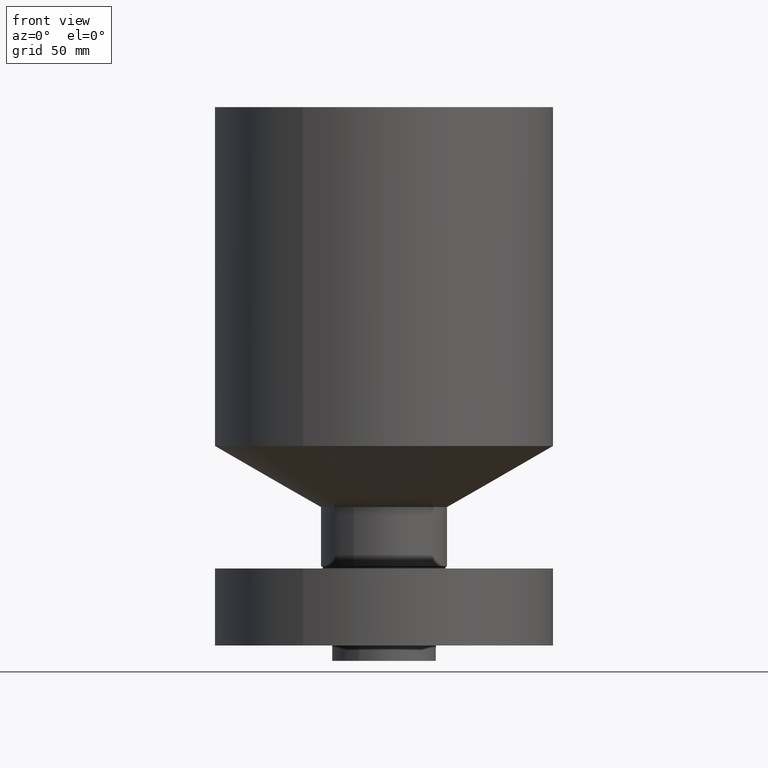
[diagram: clean part render]
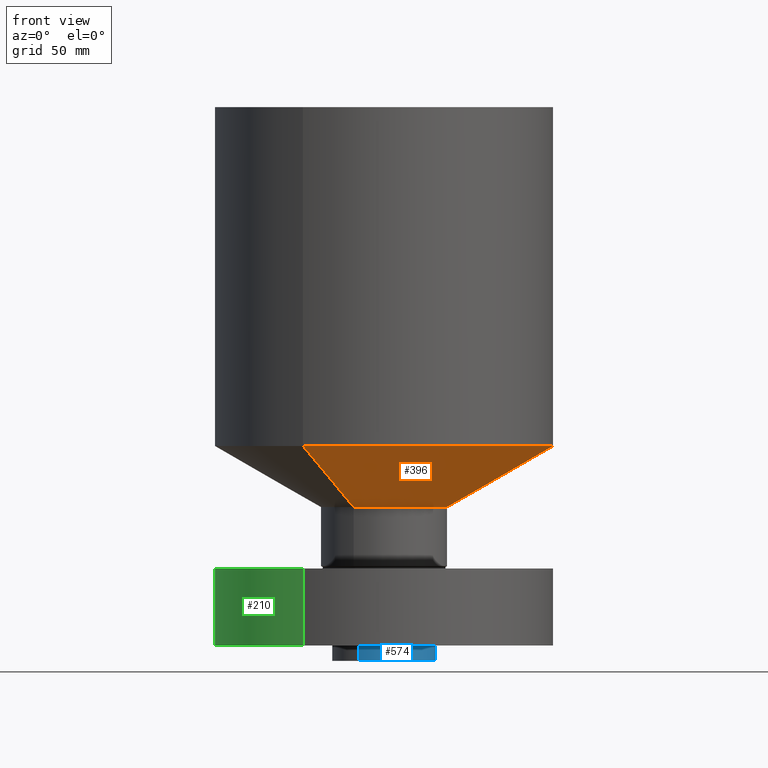
[diagram: same view with three faces highlighted in distinct colors, each labeled with its STEP entity id]
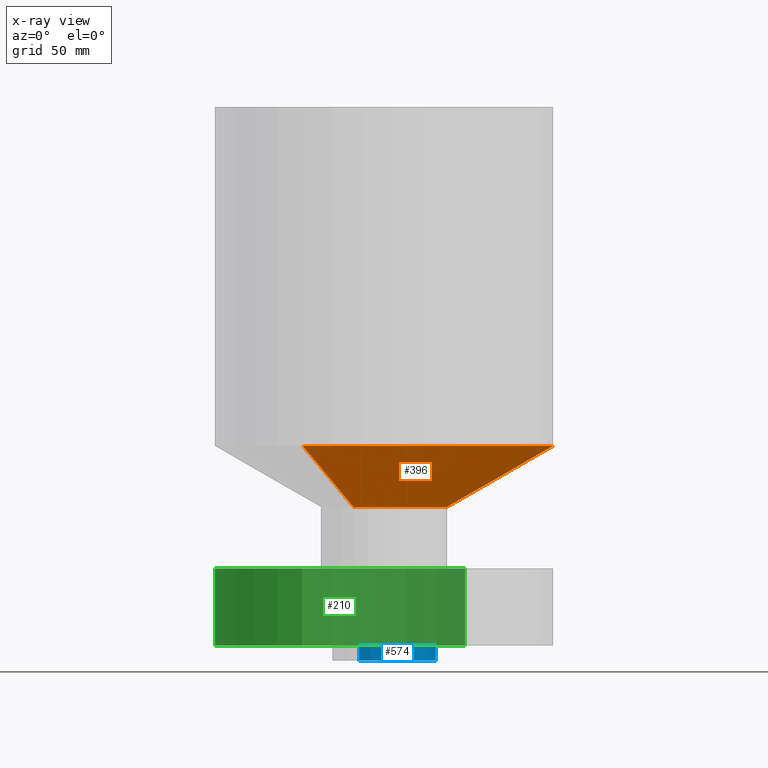
[diagram: x-ray of the same camera — body ghosted, the three highlighted faces saturated]
A machine part, front view with three faces highlighted in distinct colors.
The next image is the same camera in x-ray (body ghosted, the three faces saturated) — at least one of them is partly hidden behind the body in this view.
Their STEP definitions:

[orange] entity #396 — the highlighted conical surface has half-angle 60 deg.
#337=AXIS2_PLACEMENT_3D('Circle Axis2P3D',#335,#336,$) ;
#369=AXIS2_PLACEMENT_3D('Cone Axis2P3D',#366,#367,#368) ;
#380=AXIS2_PLACEMENT_3D('Circle Axis2P3D',#378,#379,$) ;
#332=CARTESIAN_POINT('Vertex',(0.493808304764,0.903910038751,2.25000000001)) ;
#335=CARTESIAN_POINT('Axis2P3D Location',(0.,0.,2.25000000001)) ;
#339=CARTESIAN_POINT('Vertex',(-0.493808304764,-0.903910038751,2.25000000001)) ;
#366=CARTESIAN_POINT('Axis2P3D Location',(0.,0.,2.25000000001)) ;
#371=CARTESIAN_POINT('Line Origine',(0.906114267966,1.65863104198,2.74652123151)) ;
#375=CARTESIAN_POINT('Vertex',(1.31842023117,2.41335204521,3.24304246302)) ;
#378=CARTESIAN_POINT('Axis2P3D Location',(0.,0.,3.24304246302)) ;
#382=CARTESIAN_POINT('Vertex',(-1.31842023117,-2.41335204521,3.24304246302)) ;
#385=CARTESIAN_POINT('Line Origine',(-0.906114267966,-1.65863104198,2.74652123151)) ;
#336=DIRECTION('Axis2P3D Direction',(0.,0.,-0.0393700787402)) ;
#367=DIRECTION('Axis2P3D Direction',(-0.,-0.,0.0393700787402)) ;
#368=DIRECTION('Axis2P3D XDirection',(0.0188750212049,0.0345504945626,0.)) ;
#372=DIRECTION('Vector Direction',(0.0163462478604,0.0299216060045,0.0196850393701)) ;
#379=DIRECTION('Axis2P3D Direction',(-0.,0.,0.0393700787402)) ;
#386=DIRECTION('Vector Direction',(-0.0163462478604,-0.0299216060045,0.0196850393701)) ;
#373=VECTOR('Line Direction',#372,0.0393700787402) ;
#387=VECTOR('Line Direction',#386,0.0393700787402) ;
#391=ORIENTED_EDGE('',*,*,#341,.F.) ;
#392=ORIENTED_EDGE('',*,*,#377,.T.) ;
#393=ORIENTED_EDGE('',*,*,#384,.T.) ;
#394=ORIENTED_EDGE('',*,*,#389,.F.) ;
#396=ADVANCED_FACE('PartBody',(#395),#370,.T.) ;
#338=CIRCLE('generated circle',#337,1.03) ;
#381=CIRCLE('generated circle',#380,2.75000000001) ;
#370=CONICAL_SURFACE('Cone',#369,1.03,1.0471975512) ;
#341=EDGE_CURVE('',#333,#340,#338,.T.) ;
#377=EDGE_CURVE('',#333,#376,#374,.T.) ;
#384=EDGE_CURVE('',#376,#383,#381,.F.) ;
#389=EDGE_CURVE('',#340,#383,#388,.T.) ;
#390=EDGE_LOOP('',(#391,#392,#393,#394)) ;
#395=FACE_OUTER_BOUND('',#390,.T.) ;
#374=LINE('Line',#371,#373) ;
#388=LINE('Line',#385,#387) ;
#333=VERTEX_POINT('',#332) ;
#340=VERTEX_POINT('',#339) ;
#376=VERTEX_POINT('',#375) ;
#383=VERTEX_POINT('',#382) ;

[blue] entity #574 — the highlighted cylindrical surface (partial cylindrical patch) has radius 21.463 mm, axis along (0, 0, -1).
#109=AXIS2_PLACEMENT_3D('Circle Axis2P3D',#107,#108,$) ;
#534=AXIS2_PLACEMENT_3D('Circle Axis2P3D',#532,#533,$) ;
#549=AXIS2_PLACEMENT_3D('Cylinder Axis2P3D',#546,#547,#548) ;
#107=CARTESIAN_POINT('Axis2P3D Location',(0.,0.,0.)) ;
#111=CARTESIAN_POINT('Vertex',(0.405114580122,0.7415572648,0.)) ;
#113=CARTESIAN_POINT('Vertex',(-0.405114580122,-0.7415572648,0.)) ;
#527=CARTESIAN_POINT('Vertex',(-0.405114580122,-0.7415572648,-0.250000000001)) ;
#529=CARTESIAN_POINT('Vertex',(0.405114580122,0.7415572648,-0.250000000001)) ;
#532=CARTESIAN_POINT('Axis2P3D Location',(0.,0.,-0.250000000001)) ;
#546=CARTESIAN_POINT('Axis2P3D Location',(0.,0.,4.25000000002)) ;
#551=CARTESIAN_POINT('Line Origine',(-0.405114580122,-0.7415572648,-0.125000000001)) ;
#556=CARTESIAN_POINT('Line Origine',(0.405114580122,0.7415572648,-0.125000000001)) ;
#108=DIRECTION('Axis2P3D Direction',(0.,0.,-0.0393700787402)) ;
#533=DIRECTION('Axis2P3D Direction',(0.,0.,-0.0393700787402)) ;
#547=DIRECTION('Axis2P3D Direction',(0.,0.,-0.0393700787402)) ;
#548=DIRECTION('Axis2P3D XDirection',(0.0188750212049,0.0345504945626,0.)) ;
#552=DIRECTION('Vector Direction',(0.,0.,-0.0393700787402)) ;
#557=DIRECTION('Vector Direction',(0.,0.,-0.0393700787402)) ;
#553=VECTOR('Line Direction',#552,0.0393700787402) ;
#558=VECTOR('Line Direction',#557,0.0393700787402) ;
#569=ORIENTED_EDGE('',*,*,#536,.F.) ;
#570=ORIENTED_EDGE('',*,*,#560,.T.) ;
#571=ORIENTED_EDGE('',*,*,#115,.T.) ;
#572=ORIENTED_EDGE('',*,*,#555,.F.) ;
#574=ADVANCED_FACE('PartBody',(#573),#550,.T.) ;
#110=CIRCLE('generated circle',#109,0.845000000003) ;
#535=CIRCLE('generated circle',#534,0.845000000003) ;
#550=CYLINDRICAL_SURFACE('generated cylinder',#549,0.845000000003) ;
#115=EDGE_CURVE('',#112,#114,#110,.T.) ;
#536=EDGE_CURVE('',#530,#528,#535,.T.) ;
#555=EDGE_CURVE('',#528,#114,#554,.F.) ;
#560=EDGE_CURVE('',#530,#112,#559,.F.) ;
#568=EDGE_LOOP('',(#569,#570,#571,#572)) ;
#573=FACE_OUTER_BOUND('',#568,.T.) ;
#554=LINE('Line',#551,#553) ;
#559=LINE('Line',#556,#558) ;
#112=VERTEX_POINT('',#111) ;
#114=VERTEX_POINT('',#113) ;
#528=VERTEX_POINT('',#527) ;
#530=VERTEX_POINT('',#529) ;

[green] entity #210 — the highlighted cylindrical surface (partial cylindrical patch) has radius 69.85 mm, axis along (0, 0, -1).
#82=AXIS2_PLACEMENT_3D('Circle Axis2P3D',#80,#81,$) ;
#183=AXIS2_PLACEMENT_3D('Cylinder Axis2P3D',#180,#181,#182) ;
#194=AXIS2_PLACEMENT_3D('Circle Axis2P3D',#192,#193,$) ;
#80=CARTESIAN_POINT('Axis2P3D Location',(0.,0.,0.)) ;
#84=CARTESIAN_POINT('Vertex',(-1.31842023117,-2.41335204521,5.59482469102E-016)) ;
#86=CARTESIAN_POINT('Vertex',(1.31842023117,2.41335204521,5.59482469102E-016)) ;
#180=CARTESIAN_POINT('Axis2P3D Location',(0.,0.,4.25000000002)) ;
#185=CARTESIAN_POINT('Line Origine',(-1.31842023117,-2.41335204521,5.99652123153)) ;
#189=CARTESIAN_POINT('Vertex',(-1.31842023117,-2.41335204521,1.25)) ;
#192=CARTESIAN_POINT('Axis2P3D Location',(0.,0.,1.25)) ;
#196=CARTESIAN_POINT('Vertex',(1.31842023117,2.41335204521,1.25)) ;
#199=CARTESIAN_POINT('Line Origine',(1.31842023117,2.41335204521,5.99652123153)) ;
#81=DIRECTION('Axis2P3D Direction',(0.,0.,-0.0393700787402)) ;
#181=DIRECTION('Axis2P3D Direction',(0.,0.,-0.0393700787402)) ;
#182=DIRECTION('Axis2P3D XDirection',(-0.0188750212049,-0.0345504945626,0.)) ;
#186=DIRECTION('Vector Direction',(0.,0.,-0.0393700787402)) ;
#193=DIRECTION('Axis2P3D Direction',(0.,0.,-0.0393700787402)) ;
#200=DIRECTION('Vector Direction',(0.,0.,-0.0393700787402)) ;
#187=VECTOR('Line Direction',#186,0.0393700787402) ;
#201=VECTOR('Line Direction',#200,0.0393700787402) ;
#205=ORIENTED_EDGE('',*,*,#88,.F.) ;
#206=ORIENTED_EDGE('',*,*,#191,.T.) ;
#207=ORIENTED_EDGE('',*,*,#198,.T.) ;
#208=ORIENTED_EDGE('',*,*,#203,.F.) ;
#210=ADVANCED_FACE('PartBody',(#209),#184,.T.) ;
#83=CIRCLE('generated circle',#82,2.75000000001) ;
#195=CIRCLE('generated circle',#194,2.75000000001) ;
#184=CYLINDRICAL_SURFACE('generated cylinder',#183,2.75000000001) ;
#88=EDGE_CURVE('',#85,#87,#83,.T.) ;
#191=EDGE_CURVE('',#85,#190,#188,.F.) ;
#198=EDGE_CURVE('',#190,#197,#195,.T.) ;
#203=EDGE_CURVE('',#87,#197,#202,.F.) ;
#204=EDGE_LOOP('',(#205,#206,#207,#208)) ;
#209=FACE_OUTER_BOUND('',#204,.T.) ;
#188=LINE('Line',#185,#187) ;
#202=LINE('Line',#199,#201) ;
#85=VERTEX_POINT('',#84) ;
#87=VERTEX_POINT('',#86) ;
#190=VERTEX_POINT('',#189) ;
#197=VERTEX_POINT('',#196) ;